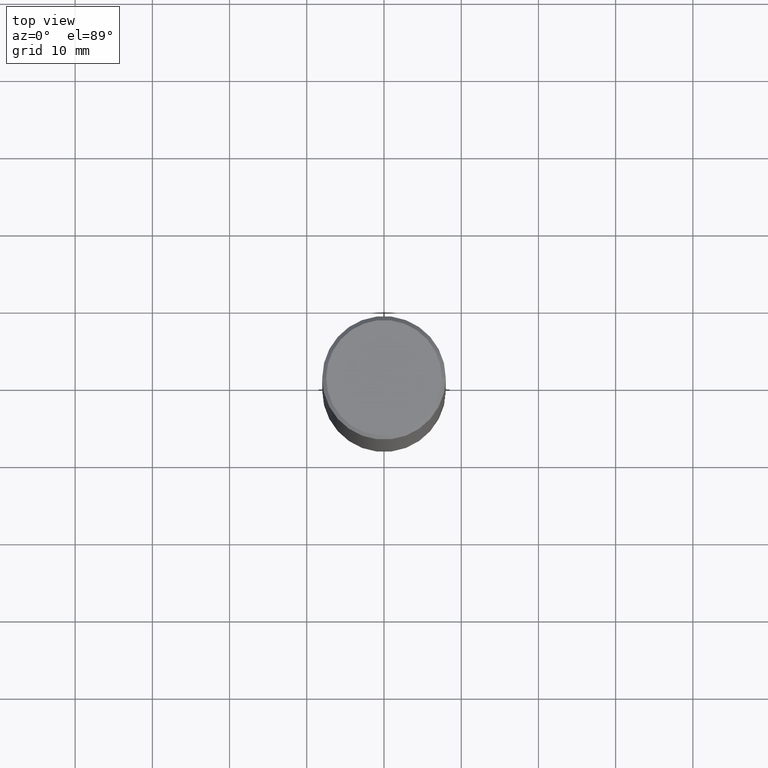
[diagram: clean part render]
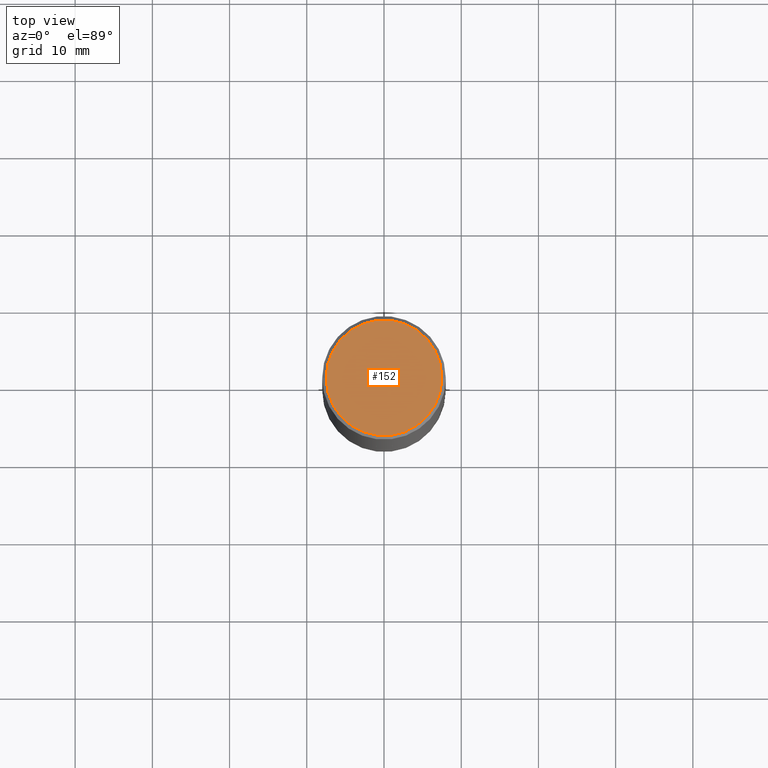
[diagram: same view with one face highlighted and labeled with its STEP entity id]
A machine part, top view. The second image highlights one B-rep face of the part: STEP entity #152.
In plain terms, the highlighted planar face has unit normal (0, -0, -1).
Its self-contained STEP definition (entity closure, byte-faithful):
#3 = AXIS2_PLACEMENT_3D ( 'NONE', #105, #217, #14 ) ;
#14 = DIRECTION ( 'NONE',  ( 1.000000000000000000, -6.982962677686267499E-15, 4.876053491004739391E-29 ) ) ;
#20 = DIRECTION ( 'NONE',  ( 1.000000000000000000, -6.982962677686267499E-15, 4.876053491004739391E-29 ) ) ;
#25 = CARTESIAN_POINT ( 'NONE',  ( -0.2949499999999997124, 2.094539655171993740E-15, 8.537024980186296424E-18 ) ) ;
#38 = AXIS2_PLACEMENT_3D ( 'NONE', #131, #65, #265 ) ;
#65 = DIRECTION ( 'NONE',  ( 2.438088387897960049E-29, -3.491481338843145188E-15, -1.000000000000000000 ) ) ;
#69 = CIRCLE ( 'NONE', #260, 0.2949499999999997124 ) ;
#103 = CARTESIAN_POINT ( 'NONE',  ( -2.087702828670439639E-46, 2.980686340760894400E-32, 8.537024980200822558E-18 ) ) ;
#105 = CARTESIAN_POINT ( 'NONE',  ( -2.087702828670439639E-46, 2.980686340760894400E-32, 8.537024980200822558E-18 ) ) ;
#109 = ORIENTED_EDGE ( 'NONE', *, *, #186, .T. ) ;
#126 = FACE_OUTER_BOUND ( 'NONE', #359, .T. ) ;
#131 = CARTESIAN_POINT ( 'NONE',  ( 2.059624841783562091E-15, 0.2949499999999997124, -1.025543908401684366E-15 ) ) ;
#133 = DIRECTION ( 'NONE',  ( -2.445468806185136597E-29, 3.491481338843145583E-15, 1.000000000000000000 ) ) ;
#136 = CARTESIAN_POINT ( 'NONE',  ( 0.2949499999999997124, -2.127023677808858103E-15, 8.537024980215462707E-18 ) ) ;
#144 = ORIENTED_EDGE ( 'NONE', *, *, #220, .T. ) ;
#152 = ADVANCED_FACE ( 'NONE', ( #126 ), #322, .F. ) ;
#186 = EDGE_CURVE ( 'NONE', #191, #238, #69, .T. ) ;
#191 = VERTEX_POINT ( 'NONE', #25 ) ;
#217 = DIRECTION ( 'NONE',  ( -2.445468806185136597E-29, 3.491481338843145583E-15, 1.000000000000000000 ) ) ;
#220 = EDGE_CURVE ( 'NONE', #238, #191, #335, .T. ) ;
#238 = VERTEX_POINT ( 'NONE', #136 ) ;
#260 = AXIS2_PLACEMENT_3D ( 'NONE', #103, #133, #20 ) ;
#265 = DIRECTION ( 'NONE',  ( -1.000000000000000000, 6.982962677686265922E-15, -4.876176775795935793E-29 ) ) ;
#322 = PLANE ( 'NONE',  #38 ) ;
#335 = CIRCLE ( 'NONE', #3, 0.2949499999999997124 ) ;
#359 = EDGE_LOOP ( 'NONE', ( #109, #144 ) ) ;